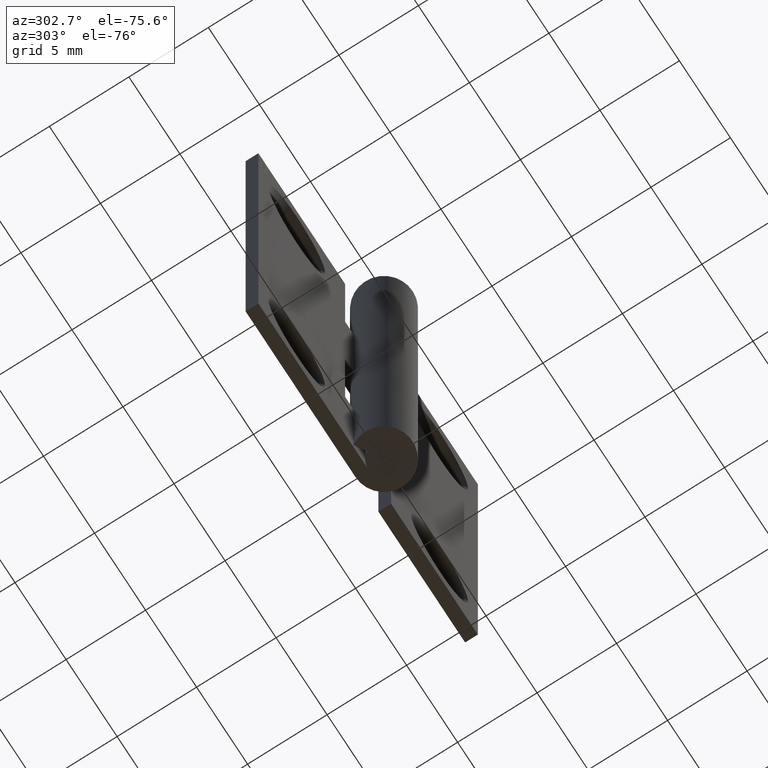
[diagram: clean part render]
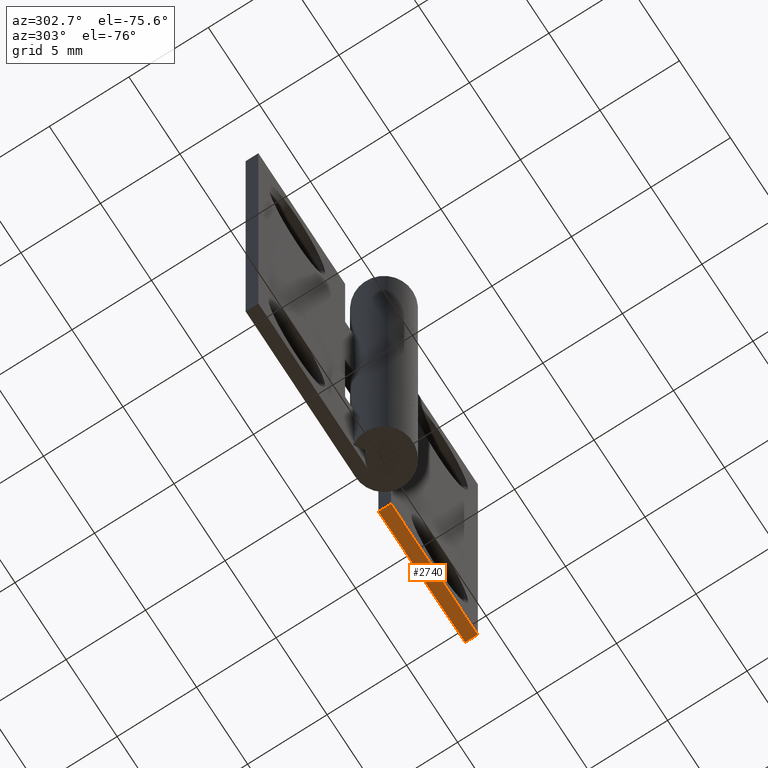
[diagram: same view with one face highlighted and labeled with its STEP entity id]
A machine part, auxiliary view. The second image highlights one B-rep face of the part: STEP entity #2740.
In plain terms, the highlighted face is a freeform B-spline surface patch.
Its self-contained STEP definition (entity closure, byte-faithful):
#2507=CARTESIAN_POINT('',(2.250000000000000,1.0,0.0));
#2508=VERTEX_POINT('',#2507);
#2523=CARTESIAN_POINT('',(2.250000000000000,1.799999000000000,0.0));
#2524=VERTEX_POINT('',#2523);
#2530=CARTESIAN_POINT('',(2.250000000000000,1.799999000000000,0.0));
#2531=CARTESIAN_POINT('',(2.250000000000000,1.0,0.0));
#2532=QUASI_UNIFORM_CURVE('',1,(#2530,#2531),.UNSPECIFIED.,.F.,.U.);
#2533=EDGE_CURVE('',#2524,#2508,#2532,.T.);
#2699=CARTESIAN_POINT('',(10.750000000000000,0.999999999999986,0.0));
#2700=VERTEX_POINT('',#2699);
#2706=CARTESIAN_POINT('',(10.750000000000000,1.799999000000000,0.0));
#2707=VERTEX_POINT('',#2706);
#2708=CARTESIAN_POINT('',(10.750000000000000,1.799999000000000,0.0));
#2709=CARTESIAN_POINT('',(10.750000000000000,0.999999999999986,0.0));
#2710=QUASI_UNIFORM_CURVE('',1,(#2708,#2709),.UNSPECIFIED.,.F.,.U.);
#2711=EDGE_CURVE('',#2707,#2700,#2710,.T.);
#2721=CARTESIAN_POINT('',(1.825425016474650,0.960040051500538,0.0));
#2722=CARTESIAN_POINT('',(11.174575211513121,0.960040051500538,0.0));
#2723=CARTESIAN_POINT('',(1.825425016474650,1.839958969957093,0.0));
#2724=CARTESIAN_POINT('',(11.174575211513121,1.839958969957093,0.0));
#2725=B_SPLINE_SURFACE_WITH_KNOTS('',1,1,((#2721,#2723),(#2722,#2724)),.UNSPECIFIED.,.F.,.F.,.U.,(2,2),(2,2),(0.0,9.349150195038467),(0.041708334948495,0.958291687403247),.UNSPECIFIED.);
#2726=CARTESIAN_POINT('',(10.750000000000000,0.999999999999986,0.0));
#2727=CARTESIAN_POINT('',(2.250000000000000,1.0,0.0));
#2728=QUASI_UNIFORM_CURVE('',1,(#2726,#2727),.UNSPECIFIED.,.F.,.U.);
#2729=EDGE_CURVE('',#2700,#2508,#2728,.T.);
#2730=ORIENTED_EDGE('',*,*,#2729,.T.);
#2731=ORIENTED_EDGE('',*,*,#2533,.F.);
#2732=CARTESIAN_POINT('',(2.250000000000000,1.799999000000000,0.0));
#2733=CARTESIAN_POINT('',(10.750000000000000,1.799999000000000,0.0));
#2734=QUASI_UNIFORM_CURVE('',1,(#2732,#2733),.UNSPECIFIED.,.F.,.U.);
#2735=EDGE_CURVE('',#2524,#2707,#2734,.T.);
#2736=ORIENTED_EDGE('',*,*,#2735,.T.);
#2737=ORIENTED_EDGE('',*,*,#2711,.T.);
#2738=EDGE_LOOP('',(#2730,#2731,#2736,#2737));
#2739=FACE_OUTER_BOUND('',#2738,.T.);
#2740=ADVANCED_FACE('',(#2739),#2725,.F.);